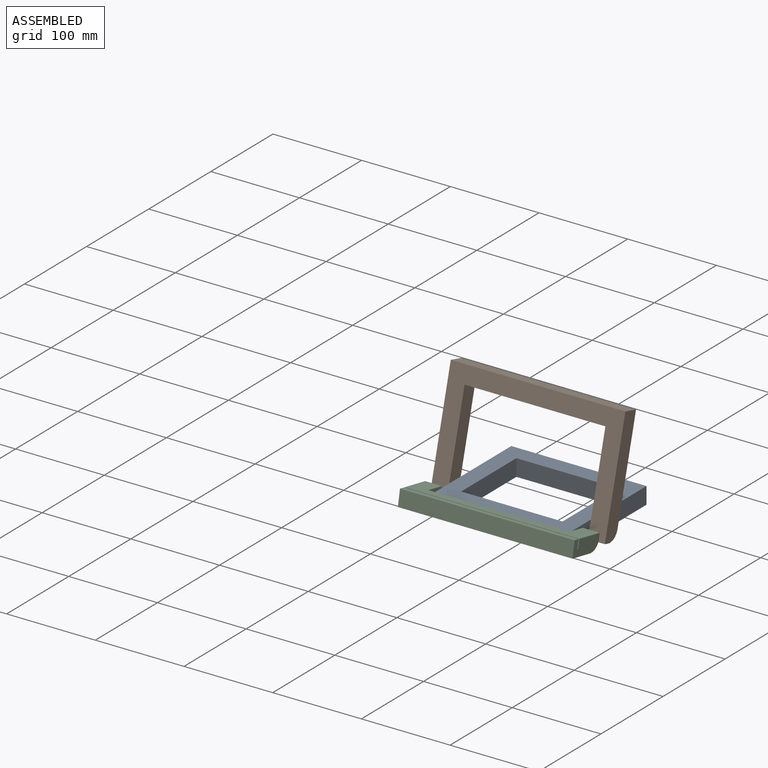
[diagram: assembled view]
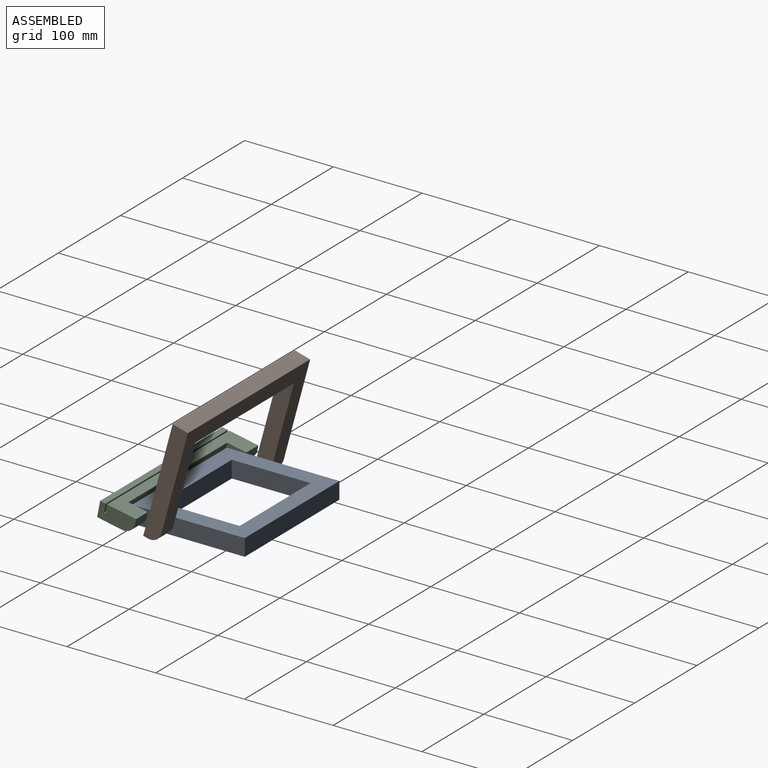
[diagram: assembled view, second angle]
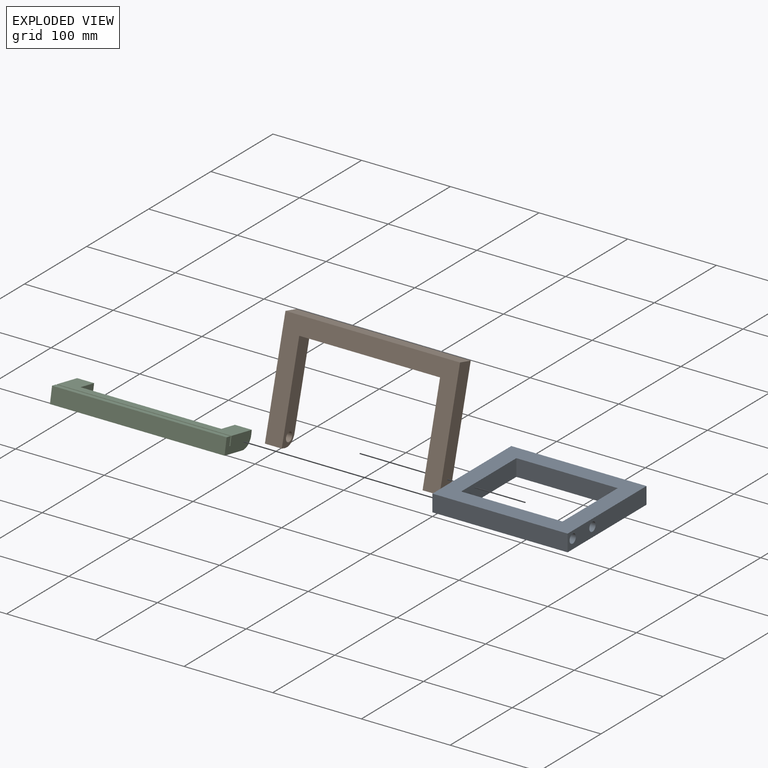
[diagram: exploded view]
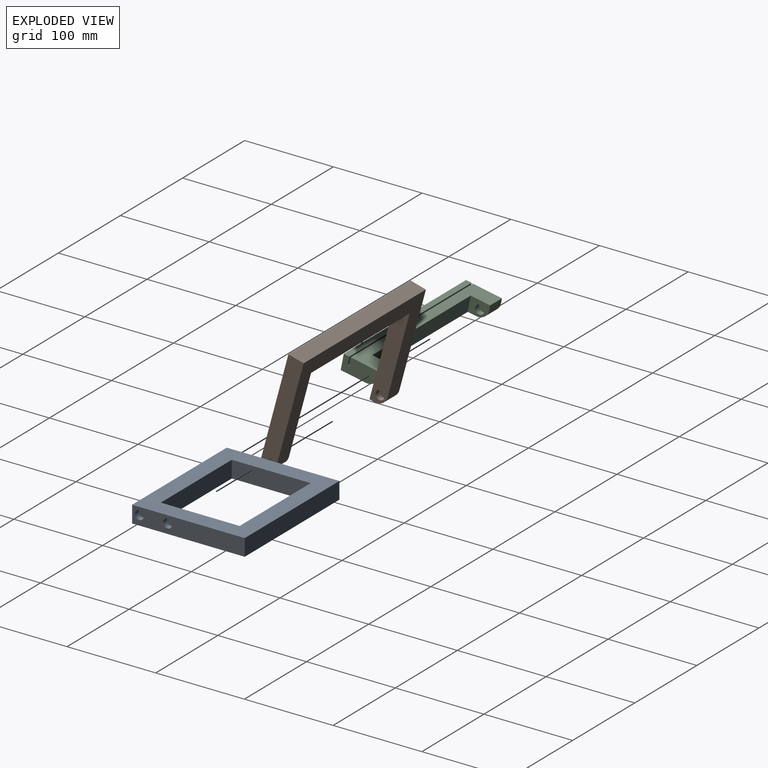
[diagram: exploded view, second angle]
ASSEMBLY  parts=3 mates=2
PART A: 18 faces, bbox 152.4x127x19.1 mm
  f0: plane 152.4x127mm, normal (0,0,1), area 9193.5mm2, adj f2,f3,f4,f5,f6,f7,f8,f9
  f1: plane 152.4x127mm, normal (0,0,-1), area 9193.5mm2, adj f2,f3,f4,f5,f6,f7,f8,f9
  f2: plane 127x19.05mm, normal (-1,0,0), area 2257.2mm2, adj f0,f1,f3,f5,f10,f12
  f3: plane 152.4x19.05mm, normal (0,-1,0), area 2903.2mm2, adj f0,f1,f2,f4
  f4: plane 127x19.05mm, normal (1,0,0), area 2257.2mm2, adj f0,f1,f3,f5,f14,f16
  f5: plane 152.4x19.05mm, normal (0,1,0), area 2903.2mm2, adj f0,f1,f2,f4
  f6: plane 88.9x19.05mm, normal (1,0,0), area 1693.5mm2, adj f0,f1,f7,f9
  f7: plane 114.3x19.05mm, normal (0,1,0), area 2177.4mm2, adj f0,f1,f6,f8
  f8: plane 88.9x19.05mm, normal (-1,0,0), area 1693.5mm2, adj f0,f1,f7,f9
  f9: plane 114.3x19.05mm, normal (0,-1,0), area 2177.4mm2, adj f0,f1,f6,f8
  f10: cylinder r=5.08mm len=10.16mm, axis (-1,0,0), area 202.7mm2, adj f2,f11
  f11: plane 10.16x10.16mm, normal (-1,0,0), area 81.1mm2, adj f10
  f12: cylinder r=5.08mm len=10.16mm, axis (-1,0,0), area 202.7mm2, adj f2,f13
  f13: plane 10.16x10.16mm, normal (-1,0,0), area 81.1mm2, adj f12
  f14: cylinder r=5.08mm len=10.16mm, axis (1,0,0), area 202.7mm2, adj f4,f15
  f15: plane 10.16x10.16mm, normal (1,0,0), area 81.1mm2, adj f14
  f16: cylinder r=5.08mm len=10.16mm, axis (1,0,0), area 202.7mm2, adj f4,f17
  f17: plane 10.16x10.16mm, normal (1,0,0), area 81.1mm2, adj f16
PART B: 16 faces, bbox 196.9x127x17.8 mm
  f0: plane 19.05x5.08mm, normal (0,-1,0), area 96.8mm2, adj f1,f7,f9,f15
  f1: plane 127x17.78mm, normal (1,0,0), area 2223.4mm2, adj f0,f2,f8,f9,f15
  f2: plane 196.85x17.78mm, normal (0,1,0), area 3500mm2, adj f1,f3,f8,f9
  f3: plane 127x17.78mm, normal (-1,0,0), area 2223.4mm2, adj f2,f4,f8,f9,f14
  f4: plane 19.05x5.08mm, normal (0,-1,0), area 96.8mm2, adj f3,f5,f9,f14
  f5: plane 107.95x17.78mm, normal (1,0,0), area 1803.7mm2, adj f4,f6,f8,f9,f12,f14
  f6: plane 158.75x17.78mm, normal (0,-1,0), area 2822.6mm2, adj f5,f7,f8,f9
  f7: plane 107.95x17.78mm, normal (-1,0,0), area 1803.7mm2, adj f0,f6,f8,f9,f11,f15
  f8: plane 196.85x114.3mm, normal (0,0,1), area 7379mm2, adj f1,f2,f3,f5,f6,f7,f14,f15
  f9: plane 196.85x127mm, normal (0,0,-1), area 7862.9mm2, adj f0,f1,f2,f3,f4,f5,f6,f7
  f10: plane 10.16x10.16mm, normal (-1,0,0), area 81.1mm2, adj f11
  f11: cylinder r=5.08mm len=10.16mm, axis (1,0,0), area 202.7mm2, adj f7,f10
  f12: cylinder r=5.08mm len=10.16mm, axis (1,0,0), area 101.3mm2, adj f5,f13
  f13: plane 10.16x10.16mm, normal (1,0,0), area 81.1mm2, adj f12
  f14: cylinder r=12.7mm len=19.05mm, axis (-1,0,0), area 380mm2, adj f3,f4,f5,f8
  f15: cylinder r=12.7mm len=19.05mm, axis (-1,0,0), area 380mm2, adj f0,f1,f7,f8
PART C: 20 faces, bbox 196.9x41.3x17.8 mm
  f0: plane 196.85x33.34mm, normal (0,0,-1), area 3034.3mm2, adj f1,f2,f4,f5,f6,f7,f8,f18
  f1: plane 19.05x5.08mm, normal (0,1,0), area 96.8mm2, adj f0,f2,f8,f16
  f2: plane 41.28x17.78mm, normal (-1,0,0), area 684.1mm2, adj f0,f1,f3,f9,f10,f16,f17,f18
  f3: plane 196.85x17.78mm, normal (0,-1,0), area 3500mm2, adj f2,f4,f9,f10
  f4: plane 41.28x17.78mm, normal (1,0,0), area 684.1mm2, adj f0,f3,f5,f9,f10,f15,f17,f18
  f5: plane 19.05x5.08mm, normal (0,1,0), area 96.8mm2, adj f0,f4,f6,f15
  f6: plane 22.23x17.78mm, normal (-1,0,0), area 279.5mm2, adj f0,f5,f7,f9,f13,f15
  f7: plane 158.75x17.78mm, normal (0,1,0), area 2822.6mm2, adj f0,f6,f8,f9
  f8: plane 22.23x17.78mm, normal (1,0,0), area 279.5mm2, adj f0,f1,f7,f9,f12,f16
  f9: plane 196.85x28.58mm, normal (0,0,1), area 4112.9mm2, adj f2,f3,f4,f6,f7,f8,f15,f16
  f10: plane 196.85x6.35mm, normal (0,0,-1), area 1250mm2, adj f2,f3,f4,f17
  f11: plane 10.16x10.16mm, normal (1,0,0), area 81.1mm2, adj f12
  f12: cylinder r=5.08mm len=10.16mm, axis (1,0,0), area 101.3mm2, adj f8,f11
  f13: cylinder r=5.08mm len=10.16mm, axis (1,0,0), area 202.7mm2, adj f6,f14
  f14: plane 10.16x10.16mm, normal (-1,0,0), area 81.1mm2, adj f13
  f15: cylinder r=12.7mm len=19.05mm, axis (1,0,0), area 380mm2, adj f4,f5,f6,f9
  f16: cylinder r=12.7mm len=19.05mm, axis (1,0,0), area 380mm2, adj f1,f2,f8,f9
  f17: plane 196.85x9.53mm, normal (0,1,0), area 1875mm2, adj f2,f4,f10,f19
  f18: plane 196.85x9.53mm, normal (0,-1,0), area 1875mm2, adj f0,f2,f4,f19
  f19: plane 196.85x1.59mm, normal (0,0,-1), area 312.5mm2, adj f2,f4,f17,f18
PLACE A at identity fixed
PLACE B rot(axis=(0,-0.79,-0.61),180deg) t=(152.4,22.36,-17.98)mm
PLACE C rot(axis=(0,1,-0.09),180deg) t=(152.4,1.32,21.83)mm
MATE revolute C.f12 <-> A.f12  axis (1,0,0) through (-3.18,8.26,10.79)mm
MATE revolute B.f11 <-> A.f10  axis (1,0,0) through (-3.18,40,10.79)mm
